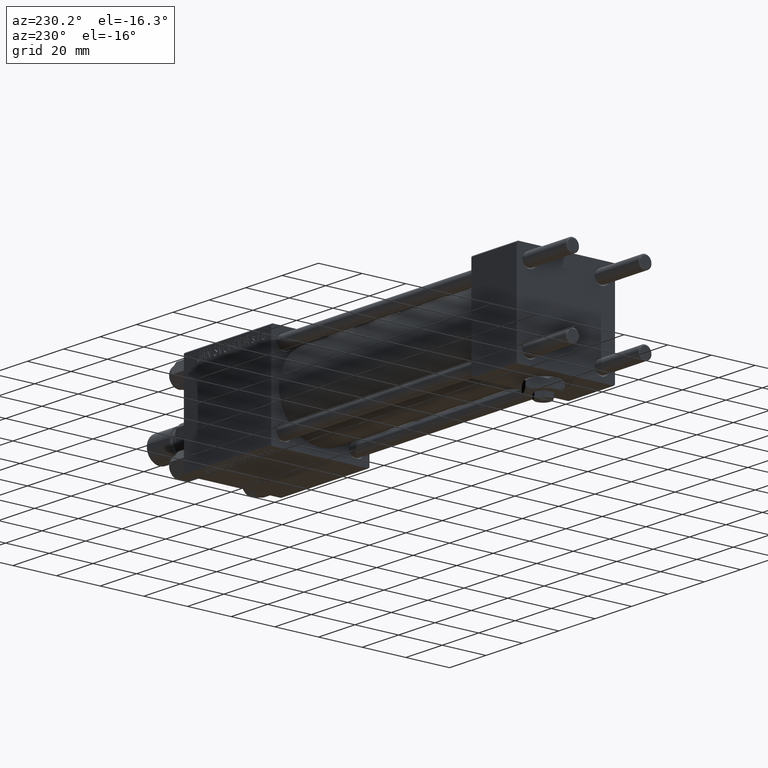
[diagram: clean part render]
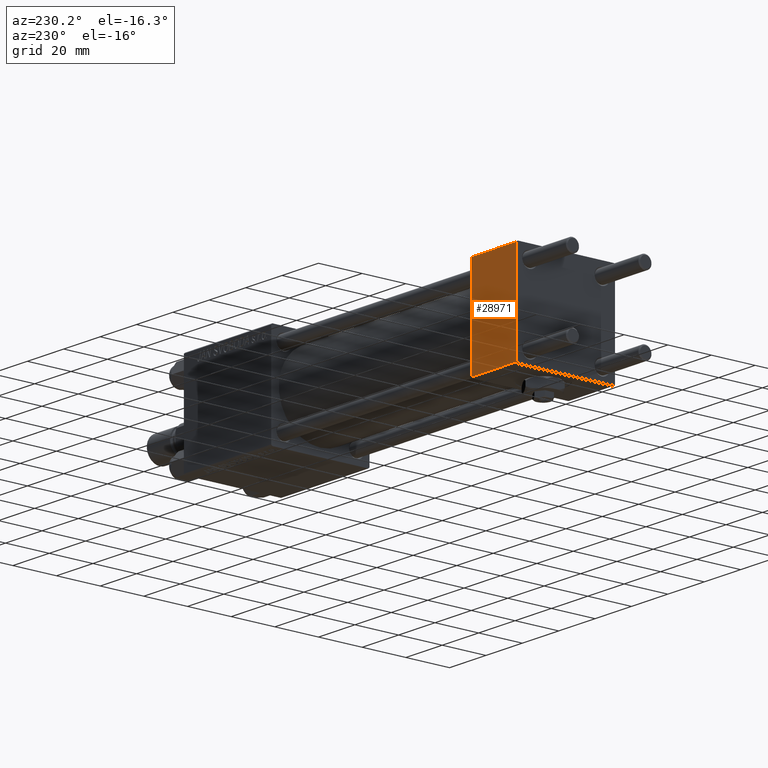
[diagram: same view with one face highlighted and labeled with its STEP entity id]
A machine part, auxiliary view. The second image highlights one B-rep face of the part: STEP entity #28971.
In plain terms, the highlighted planar face has unit normal (0, 1, 0).
Its self-contained STEP definition (entity closure, byte-faithful):
#4482 = VECTOR ( 'NONE', #17502, 1000.000000000000000 ) ;
#8652 = VERTEX_POINT ( 'NONE', #44927 ) ;
#8848 = VERTEX_POINT ( 'NONE', #34610 ) ;
#9307 = CARTESIAN_POINT ( 'NONE',  ( 25.00000000000000000, 22.50000000000000000, -21.99999999999998224 ) ) ;
#10870 = DIRECTION ( 'NONE',  ( 0.000000000000000000, 0.000000000000000000, -1.000000000000000000 ) ) ;
#12535 = CARTESIAN_POINT ( 'NONE',  ( 25.00000000000000000, 22.50000000000000000, -21.99999999999996803 ) ) ;
#15721 = VERTEX_POINT ( 'NONE', #35261 ) ;
#16086 = EDGE_CURVE ( 'NONE', #8652, #8848, #48055, .T. ) ;
#16749 = VERTEX_POINT ( 'NONE', #12535 ) ;
#17502 = DIRECTION ( 'NONE',  ( -1.000000000000000000, 0.000000000000000000, 0.000000000000000000 ) ) ;
#22348 = EDGE_CURVE ( 'NONE', #16749, #8848, #29670, .T. ) ;
#22377 = EDGE_LOOP ( 'NONE', ( #45035, #27048, #39047, #44373 ) ) ;
#23152 = VECTOR ( 'NONE', #52235, 1000.000000000000000 ) ;
#23759 = EDGE_CURVE ( 'NONE', #8652, #15721, #40109, .T. ) ;
#26652 = EDGE_CURVE ( 'NONE', #15721, #16749, #34143, .T. ) ;
#27048 = ORIENTED_EDGE ( 'NONE', *, *, #22348, .T. ) ;
#28971 = ADVANCED_FACE ( 'NONE', ( #42489 ), #30105, .T. ) ;
#29126 = AXIS2_PLACEMENT_3D ( 'NONE', #46960, #38797, #46447 ) ;
#29670 = LINE ( 'NONE', #9307, #4482 ) ;
#30105 = PLANE ( 'NONE',  #29126 ) ;
#30195 = CARTESIAN_POINT ( 'NONE',  ( 25.00000000000000000, 22.50000000000000000, 22.50000000000000355 ) ) ;
#34143 = LINE ( 'NONE', #30195, #46852 ) ;
#34610 = CARTESIAN_POINT ( 'NONE',  ( 0.000000000000000000, 22.50000000000000000, -21.99999999999996803 ) ) ;
#35261 = CARTESIAN_POINT ( 'NONE',  ( 25.00000000000000000, 22.50000000000000000, 21.99999999999999645 ) ) ;
#35639 = CARTESIAN_POINT ( 'NONE',  ( 0.000000000000000000, 22.50000000000000000, 22.50000000000000355 ) ) ;
#38797 = DIRECTION ( 'NONE',  ( -0.000000000000000000, 1.000000000000000000, 0.000000000000000000 ) ) ;
#39047 = ORIENTED_EDGE ( 'NONE', *, *, #16086, .F. ) ;
#40109 = LINE ( 'NONE', #47766, #23152 ) ;
#42489 = FACE_OUTER_BOUND ( 'NONE', #22377, .T. ) ;
#44373 = ORIENTED_EDGE ( 'NONE', *, *, #23759, .T. ) ;
#44927 = CARTESIAN_POINT ( 'NONE',  ( 0.000000000000000000, 22.50000000000000000, 21.99999999999999645 ) ) ;
#45035 = ORIENTED_EDGE ( 'NONE', *, *, #26652, .T. ) ;
#45365 = VECTOR ( 'NONE', #47783, 1000.000000000000000 ) ;
#46447 = DIRECTION ( 'NONE',  ( 0.000000000000000000, -0.000000000000000000, 1.000000000000000000 ) ) ;
#46852 = VECTOR ( 'NONE', #10870, 1000.000000000000000 ) ;
#46960 = CARTESIAN_POINT ( 'NONE',  ( 25.00000000000000000, 22.50000000000000000, 22.50000000000000355 ) ) ;
#47766 = CARTESIAN_POINT ( 'NONE',  ( 25.00000000000000000, 22.50000000000000000, 21.99999999999999645 ) ) ;
#47783 = DIRECTION ( 'NONE',  ( 0.000000000000000000, 0.000000000000000000, -1.000000000000000000 ) ) ;
#48055 = LINE ( 'NONE', #35639, #45365 ) ;
#52235 = DIRECTION ( 'NONE',  ( 1.000000000000000000, 0.000000000000000000, 0.000000000000000000 ) ) ;